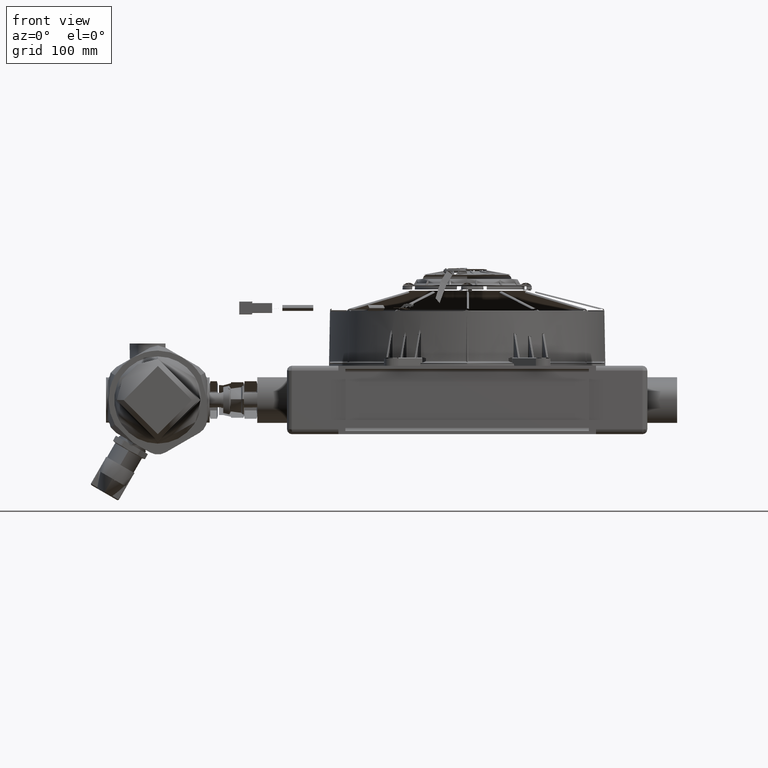
[diagram: clean part render]
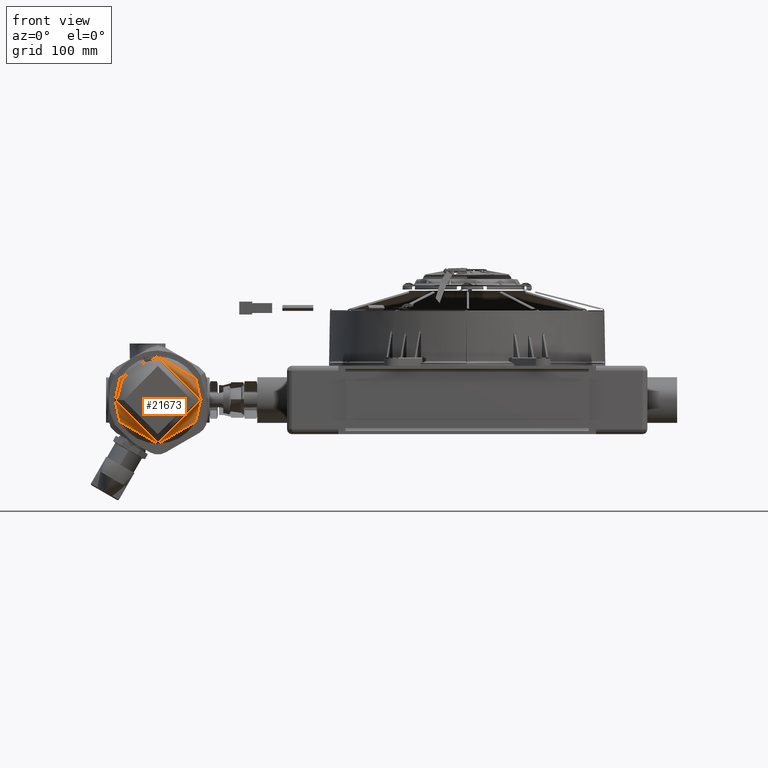
[diagram: same view with one face highlighted and labeled with its STEP entity id]
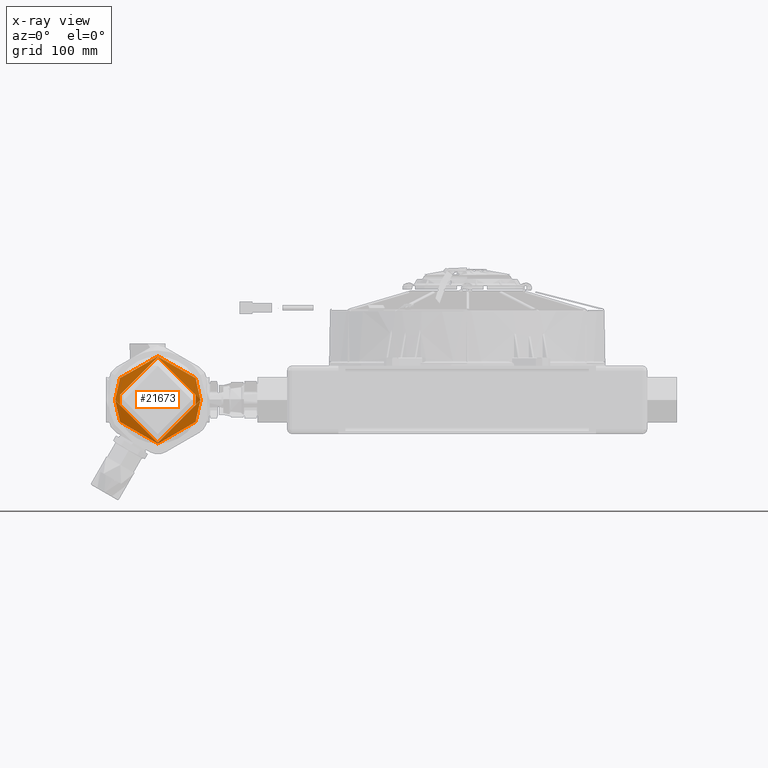
[diagram: x-ray of the same camera — body ghosted, the highlighted face saturated]
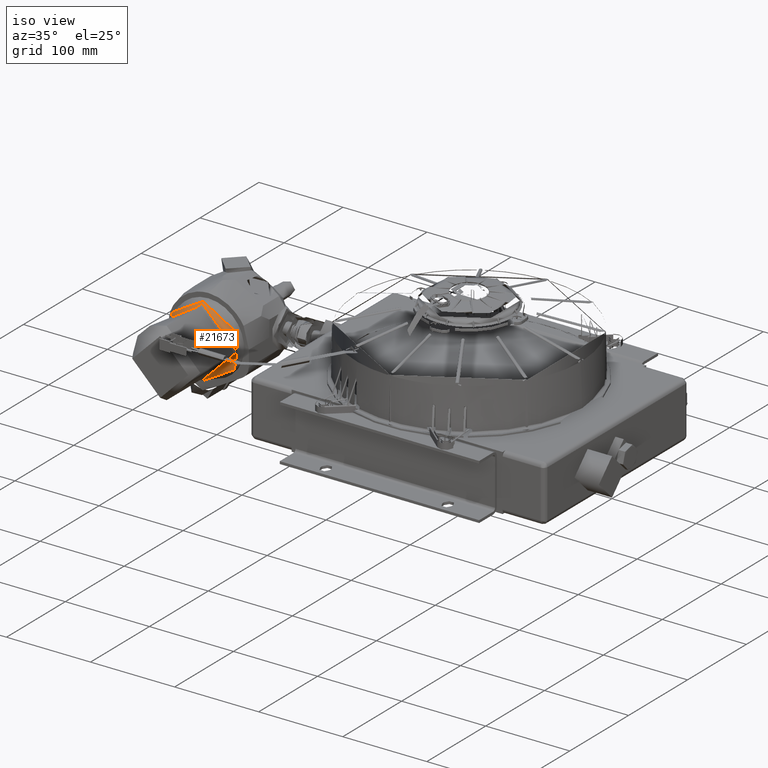
[diagram: same view with one face highlighted and labeled with its STEP entity id]
A machine part, front view. The second image highlights one B-rep face of the part: STEP entity #21673.
The next image is the same camera in x-ray: the body ghosted, the highlighted face saturated — about 0% of this face is hidden behind the body in this view.
A second angle (iso view) of the same face is appended — the face is thin or edge-on in the first view.
In plain terms, the highlighted toroidal blend (fillet) surface has major radius 39.5 mm and minor (blend) radius 3 mm.
Its self-contained STEP definition (entity closure, byte-faithful):
#120 = CARTESIAN_POINT ( 'NONE',  ( -11.86764566928910725, -0.8988456557522506163, 1.636666155245134258 ) ) ;
#4858 = DIRECTION ( 'NONE',  ( 0.0000000000000000000, -1.000000000000000000, -0.0000000000000000000 ) ) ;
#13667 = AXIS2_PLACEMENT_3D ( 'NONE', #96613, #122468, #15161 ) ;
#15161 = DIRECTION ( 'NONE',  ( 0.0000000000000000000, 8.335744573557816231E-17, 1.000000000000000000 ) ) ;
#15826 = CARTESIAN_POINT ( 'NONE',  ( -11.86764566928910725, -0.8153291068063309721, -1.675196850393702697 ) ) ;
#21673 = ADVANCED_FACE ( 'NONE', ( #125726, #34890 ), #159172, .T. ) ;
#24793 = DIRECTION ( 'NONE',  ( 0.0000000000000000000, 0.0000000000000000000, 1.000000000000000000 ) ) ;
#25438 = EDGE_LOOP ( 'NONE', ( #45749 ) ) ;
#29814 = CARTESIAN_POINT ( 'NONE',  ( -11.86764566928910725, -0.8153291068063309721, -0.001968503937009501159 ) ) ;
#33136 = CIRCLE ( 'NONE', #150252, 1.673228346456693050 ) ;
#34890 = FACE_OUTER_BOUND ( 'NONE', #68335, .T. ) ;
#45749 = ORIENTED_EDGE ( 'NONE', *, *, #148947, .T. ) ;
#47044 = ORIENTED_EDGE ( 'NONE', *, *, #91185, .F. ) ;
#68335 = EDGE_LOOP ( 'NONE', ( #47044 ) ) ;
#80362 = CIRCLE ( 'NONE', #13667, 1.638634659182143682 ) ;
#88239 = CARTESIAN_POINT ( 'NONE',  ( -11.86764566928910725, -0.8153291068063307501, -0.001968503937009501159 ) ) ;
#91185 = EDGE_CURVE ( 'NONE', #116835, #116835, #80362, .T. ) ;
#96613 = CARTESIAN_POINT ( 'NONE',  ( -11.86764566928910725, -0.8988456557522507273, -0.001968503937009523710 ) ) ;
#116835 = VERTEX_POINT ( 'NONE', #120 ) ;
#122468 = DIRECTION ( 'NONE',  ( -0.0000000000000000000, -1.000000000000000000, 2.083936143389454366E-17 ) ) ;
#125726 = FACE_OUTER_BOUND ( 'NONE', #25438, .T. ) ;
#135670 = DIRECTION ( 'NONE',  ( 0.0000000000000000000, 0.0000000000000000000, -1.000000000000000000 ) ) ;
#139045 = DIRECTION ( 'NONE',  ( -0.0000000000000000000, 1.000000000000000000, 0.0000000000000000000 ) ) ;
#140486 = AXIS2_PLACEMENT_3D ( 'NONE', #88239, #139045, #24793 ) ;
#144243 = VERTEX_POINT ( 'NONE', #15826 ) ;
#148947 = EDGE_CURVE ( 'NONE', #144243, #144243, #33136, .T. ) ;
#150252 = AXIS2_PLACEMENT_3D ( 'NONE', #29814, #4858, #135670 ) ;
#159172 = TOROIDAL_SURFACE ( 'NONE', #140486, 1.555118110236220819, 0.1181102362204723144 ) ;